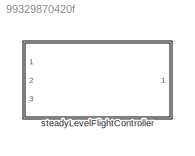
MODEL slx_99329870420f
KIND library
CONFIG AbsTol = auto
CONFIG EnableMultiTasking = off
CONFIG FixedStep = auto
CONFIG MaxStep = auto
CONFIG MinStep = auto
CONFIG RelTol = 1e-3
CONFIG SampleTimeConstraint = Unconstrained
CONFIG SolverName = VariableStepAuto
CONFIG StartTime = 0.0
CONFIG StopTime = 10.0
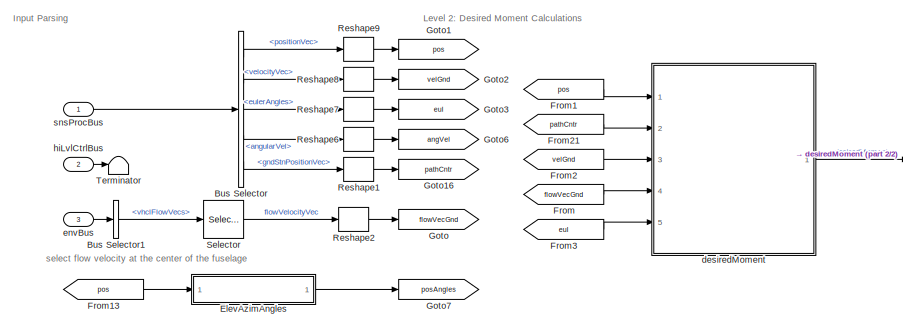
[diagram: steadyLevelFlightController - part 1/2, left side, full height]
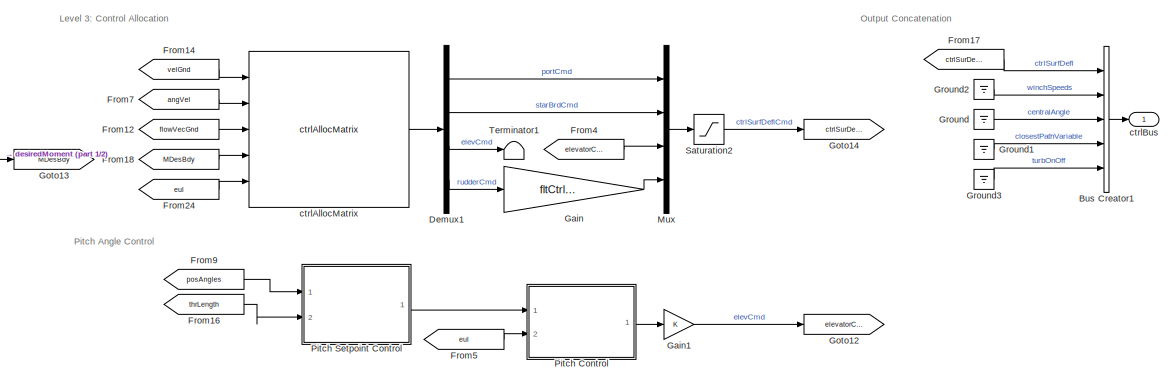
[diagram: steadyLevelFlightController - part 2/2, right side, full height]
BLOCK [SubSystem] steadyLevelFlightController
  InitFcn = initializeBussesFromBlock(gcb)
  LoadFcn = initializeBussesFromBlock(gcb)
  MinAlgLoopOccurrences = on
  Ports = [3, 1]
  RequestExecContextInheritance = off
  StartFcn = initializeBussesFromBlock(gcb)
  VariantControl = strcmpi(FLIGHTCONTROLLER,'steadyLevelFlightController')
BLOCK [BusCreator] steadyLevelFlightController/Bus Creator1
  DisplayOption = bar
  InheritFromInputs = off
  Inputs = 5
  OutDataTypeStr = Bus: fltCtrlBus
  Ports = [5, 1]
BLOCK [BusSelector] steadyLevelFlightController/Bus Selector
  OutputSignals = positionVec,velocityVec,eulerAngles,angularVel,gndStnPositionVec
  Ports = [1, 5]
BLOCK [BusSelector] steadyLevelFlightController/Bus Selector1
  OutputSignals = vhclFlowVecs
  Ports = [1, 1]
BLOCK [Demux] steadyLevelFlightController/Demux1
  Ports = [1, 4]
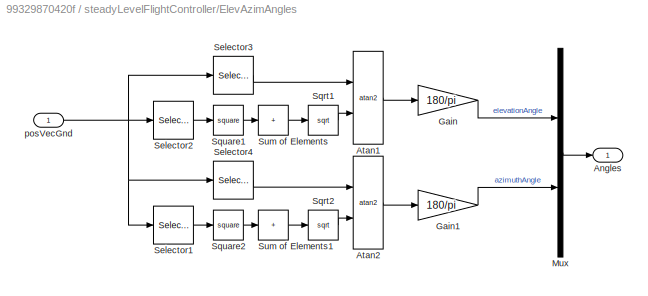
BLOCK [SubSystem] steadyLevelFlightController/ElevAzimAngles
  Ports = [1, 1]
  RequestExecContextInheritance = off
BLOCK [Outport] steadyLevelFlightController/ElevAzimAngles/Angles
BLOCK [Trigonometry] steadyLevelFlightController/ElevAzimAngles/Atan1
  Operator = atan2
  Ports = [2, 1]
BLOCK [Trigonometry] steadyLevelFlightController/ElevAzimAngles/Atan2
  Operator = atan2
  Ports = [2, 1]
BLOCK [Gain] steadyLevelFlightController/ElevAzimAngles/Gain
  Gain = 180/pi
BLOCK [Gain] steadyLevelFlightController/ElevAzimAngles/Gain1
  Gain = 180/pi
BLOCK [Mux] steadyLevelFlightController/ElevAzimAngles/Mux
  DisplayOption = bar
  Inputs = 2
  Ports = [2, 1]
BLOCK [Selector] steadyLevelFlightController/ElevAzimAngles/Selector1
  IndexOptions = Index vector (dialog)
  Indices = 1
  InputPortWidth = 3
  OutputSizes = 1
  Ports = [1, 1]
BLOCK [Selector] steadyLevelFlightController/ElevAzimAngles/Selector2
  IndexOptions = Index vector (dialog)
  Indices = [1 2]
  InputPortWidth = 3
  OutputSizes = 1
  Ports = [1, 1]
BLOCK [Selector] steadyLevelFlightController/ElevAzimAngles/Selector3
  IndexOptions = Index vector (dialog)
  Indices = 3
  InputPortWidth = 3
  OutputSizes = 1
  Ports = [1, 1]
BLOCK [Selector] steadyLevelFlightController/ElevAzimAngles/Selector4
  IndexOptions = Index vector (dialog)
  Indices = 2
  InputPortWidth = 3
  OutputSizes = 1
  Ports = [1, 1]
BLOCK [Sqrt] steadyLevelFlightController/ElevAzimAngles/Sqrt1
BLOCK [Sqrt] steadyLevelFlightController/ElevAzimAngles/Sqrt2
BLOCK [Math] steadyLevelFlightController/ElevAzimAngles/Square1
  Operator = square
  Ports = [1, 1]
  SignedPower = on
BLOCK [Math] steadyLevelFlightController/ElevAzimAngles/Square2
  Operator = square
  Ports = [1, 1]
  SignedPower = on
BLOCK [Sum] steadyLevelFlightController/ElevAzimAngles/Sum of Elements
  IconShape = rectangular
  Inputs = +
  Ports = [1, 1]
BLOCK [Sum] steadyLevelFlightController/ElevAzimAngles/Sum of Elements1
  IconShape = rectangular
  Inputs = +
  Ports = [1, 1]
BLOCK [Inport] steadyLevelFlightController/ElevAzimAngles/posVecGnd
BLOCK [From] steadyLevelFlightController/From
  GotoTag = flowVecGnd
BLOCK [From] steadyLevelFlightController/From1
  GotoTag = pos
BLOCK [From] steadyLevelFlightController/From12
  GotoTag = flowVecGnd
BLOCK [From] steadyLevelFlightController/From13
  GotoTag = pos
BLOCK [From] steadyLevelFlightController/From14
  GotoTag = velGnd
BLOCK [From] steadyLevelFlightController/From16
  GotoTag = thrLength
BLOCK [From] steadyLevelFlightController/From17
  GotoTag = ctrlSurDefl
BLOCK [From] steadyLevelFlightController/From18
  GotoTag = MDesBdy
BLOCK [From] steadyLevelFlightController/From2
  GotoTag = velGnd
BLOCK [From] steadyLevelFlightController/From21
  GotoTag = pathCntr
BLOCK [From] steadyLevelFlightController/From24
  GotoTag = eul
BLOCK [From] steadyLevelFlightController/From3
  GotoTag = eul
BLOCK [From] steadyLevelFlightController/From4
  GotoTag = elevatorCmd
BLOCK [From] steadyLevelFlightController/From5
  GotoTag = eul
BLOCK [From] steadyLevelFlightController/From7
  GotoTag = angVel
BLOCK [From] steadyLevelFlightController/From9
  GotoTag = posAngles
BLOCK [Gain] steadyLevelFlightController/Gain
  Gain = fltCtrl.rudderGain.Value
BLOCK [Gain] steadyLevelFlightController/Gain1
BLOCK [Goto] steadyLevelFlightController/Goto
  GotoTag = flowVecGnd
BLOCK [Goto] steadyLevelFlightController/Goto1
  GotoTag = pos
BLOCK [Goto] steadyLevelFlightController/Goto12
  GotoTag = elevatorCmd
BLOCK [Goto] steadyLevelFlightController/Goto13
  GotoTag = MDesBdy
BLOCK [Goto] steadyLevelFlightController/Goto14
  GotoTag = ctrlSurDefl
BLOCK [Goto] steadyLevelFlightController/Goto16
  GotoTag = pathCntr
BLOCK [Goto] steadyLevelFlightController/Goto2
  GotoTag = velGnd
BLOCK [Goto] steadyLevelFlightController/Goto3
  GotoTag = eul
BLOCK [Goto] steadyLevelFlightController/Goto6
  GotoTag = angVel
BLOCK [Goto] steadyLevelFlightController/Goto7
  GotoTag = posAngles
BLOCK [Ground] steadyLevelFlightController/Ground
BLOCK [Ground] steadyLevelFlightController/Ground1
BLOCK [Ground] steadyLevelFlightController/Ground2
BLOCK [Ground] steadyLevelFlightController/Ground3
BLOCK [Mux] steadyLevelFlightController/Mux
  DisplayOption = bar
  Ports = [4, 1]
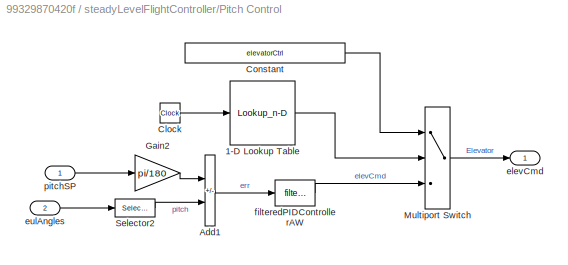
BLOCK [SubSystem] steadyLevelFlightController/Pitch Control
  Ports = [2, 1]
  RequestExecContextInheritance = off
BLOCK [Lookup_n-D] steadyLevelFlightController/Pitch Control/1-D Lookup Table
  BreakpointsForDimension1 = tRef
  InputPortMap = u0
  InternalRulePriority = Speed
  NumberOfTableDimensions = 1
  Ports = [1, 1]
  RndMeth = Simplest
  Table = elevCommand
BLOCK [Sum] steadyLevelFlightController/Pitch Control/Add1
  IconShape = rectangular
  Inputs = -+
  Ports = [2, 1]
BLOCK [Clock] steadyLevelFlightController/Pitch Control/Clock
BLOCK [Constant] steadyLevelFlightController/Pitch Control/Constant
  Value = elevatorCtrl
BLOCK [Gain] steadyLevelFlightController/Pitch Control/Gain2
  Gain = pi/180
BLOCK [MultiPortSwitch] steadyLevelFlightController/Pitch Control/Multiport Switch
  DataPortIndices = {0,1}
  DataPortOrder = Specify indices
  InputSameDT = off
  Inputs = 2
  Ports = [3, 1]
  SaturateOnIntegerOverflow = off
BLOCK [Selector] steadyLevelFlightController/Pitch Control/Selector2
  IndexOptions = Index vector (dialog)
  Indices = 2
  InputPortWidth = 3
  OutputSizes = 1
  Ports = [1, 1]
BLOCK [Outport] steadyLevelFlightController/Pitch Control/elevCmd
BLOCK [Inport] steadyLevelFlightController/Pitch Control/eulAngles
  Port = 2
BLOCK [Reference] steadyLevelFlightController/Pitch Control/filteredPIDControllerAW  REF=filteredPIDControllerAW_ul/filteredPIDControllerAW
  Ports = [1, 1]
  SourceBlock = filteredPIDControllerAW_ul/filteredPIDControllerAW
BLOCK [Inport] steadyLevelFlightController/Pitch Control/pitchSP
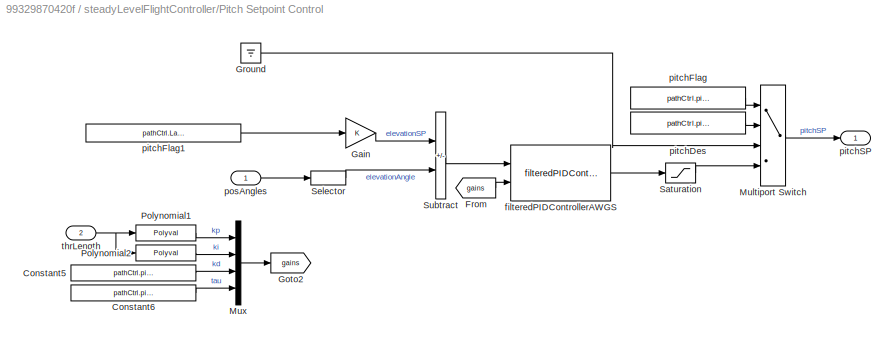
BLOCK [SubSystem] steadyLevelFlightController/Pitch Setpoint Control
  Ports = [2, 1]
  RequestExecContextInheritance = off
BLOCK [Constant] steadyLevelFlightController/Pitch Setpoint Control/Constant5
  Value = pathCtrl.pitchSP.kd.Value
BLOCK [Constant] steadyLevelFlightController/Pitch Setpoint Control/Constant6
  Value = pathCtrl.pitchSP.tau.Value
BLOCK [From] steadyLevelFlightController/Pitch Setpoint Control/From
  GotoTag = gains
BLOCK [Gain] steadyLevelFlightController/Pitch Setpoint Control/Gain
BLOCK [Goto] steadyLevelFlightController/Pitch Setpoint Control/Goto2
  GotoTag = gains
BLOCK [Ground] steadyLevelFlightController/Pitch Setpoint Control/Ground
BLOCK [MultiPortSwitch] steadyLevelFlightController/Pitch Setpoint Control/Multiport Switch
  DataPortIndices = {0,1,2}
  DataPortOrder = Specify indices
  InputSameDT = off
  Inputs = 2
  Ports = [4, 1]
  SaturateOnIntegerOverflow = off
BLOCK [Mux] steadyLevelFlightController/Pitch Setpoint Control/Mux
  DisplayOption = bar
  Ports = [4, 1]
BLOCK [Polyval] steadyLevelFlightController/Pitch Setpoint Control/Polynomial1
  Coefs = [pathCtrl.pitchSPkpSlope.Value pathCtrl.pitchSPkpInt.Value]
BLOCK [Polyval] steadyLevelFlightController/Pitch Setpoint Control/Polynomial2
  Coefs = [pathCtrl.pitchSPkiSlope.Value pathCtrl.pitchSPkiInt.Value]
BLOCK [Saturate] steadyLevelFlightController/Pitch Setpoint Control/Saturation
  LowerLimit = pathCtrl.pitchAngleMax.lowerLimit.Value
  UpperLimit = pathCtrl.pitchAngleMax.upperLimit.Value
BLOCK [Selector] steadyLevelFlightController/Pitch Setpoint Control/Selector
  IndexOptions = Index vector (dialog)
  Indices = 1
  InputPortWidth = 2
  OutputSizes = 1
  Ports = [1, 1]
BLOCK [Sum] steadyLevelFlightController/Pitch Setpoint Control/Subtract
  IconShape = rectangular
  Inputs = +-
  Ports = [2, 1]
BLOCK [Reference] steadyLevelFlightController/Pitch Setpoint Control/filteredPIDControllerAWGS  REF=filteredPIDControllerAWGS_ul/filteredPIDControllerAWGS
  Ports = [2, 1]
  SourceBlock = filteredPIDControllerAWGS_ul/filteredPIDControllerAWGS
BLOCK [Constant] steadyLevelFlightController/Pitch Setpoint Control/pitchDes
  Value = pathCtrl.pitchConst.Value
BLOCK [Constant] steadyLevelFlightController/Pitch Setpoint Control/pitchFlag
  Value = pathCtrl.pitchCtrl.Value
BLOCK [Constant] steadyLevelFlightController/Pitch Setpoint Control/pitchFlag1
  Value = pathCtrl.LaRelevationSP.Value
BLOCK [Outport] steadyLevelFlightController/Pitch Setpoint Control/pitchSP
BLOCK [Inport] steadyLevelFlightController/Pitch Setpoint Control/posAngles
BLOCK [Inport] steadyLevelFlightController/Pitch Setpoint Control/thrLength
  Port = 2
BLOCK [Reshape] steadyLevelFlightController/Reshape1
  OutputDimensionality = Column vector (2-D)
  Ports = [1, 1]
BLOCK [Reshape] steadyLevelFlightController/Reshape2
  OutputDimensionality = Column vector (2-D)
  Ports = [1, 1]
BLOCK [Reshape] steadyLevelFlightController/Reshape6
  OutputDimensionality = Column vector (2-D)
  Ports = [1, 1]
BLOCK [Reshape] steadyLevelFlightController/Reshape7
  OutputDimensionality = Column vector (2-D)
  Ports = [1, 1]
BLOCK [Reshape] steadyLevelFlightController/Reshape8
  OutputDimensionality = Column vector (2-D)
  Ports = [1, 1]
BLOCK [Reshape] steadyLevelFlightController/Reshape9
  OutputDimensionality = Column vector (2-D)
  Ports = [1, 1]
BLOCK [Saturate] steadyLevelFlightController/Saturation2
  LowerLimit = pathCtrl.controlSigMax.lowerLimit.Value
  UpperLimit = pathCtrl.controlSigMax.upperLimit.Value
BLOCK [Selector] steadyLevelFlightController/Selector
  IndexOptions = Select all,Index vector (dialog)
  Indices = [1 3],5
  InputPortWidth = 3
  NumberOfDimensions = 2
  OutputSizes = 1,1
  Ports = [1, 1]
BLOCK [Terminator] steadyLevelFlightController/Terminator
BLOCK [Terminator] steadyLevelFlightController/Terminator1
BLOCK [Reference] steadyLevelFlightController/ctrlAllocMatrix  REF=ctrlAllocMatrix_cl/ctrlAllocMatrix
  Ports = [5, 1]
  SourceBlock = ctrlAllocMatrix_cl/ctrlAllocMatrix
BLOCK [Outport] steadyLevelFlightController/ctrlBus
  OutDataTypeStr = Bus: fltCtrlBus
  VectorParamsAs1DForOutWhenUnconnected = off
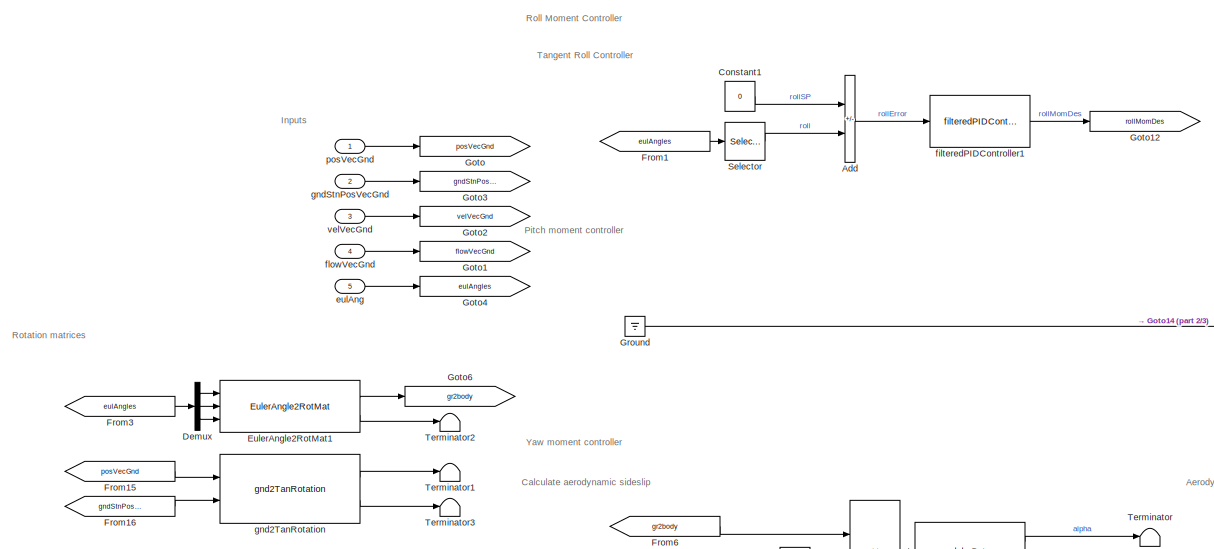
[diagram: steadyLevelFlightController/desiredMoment - part 1/3, left side, full height]
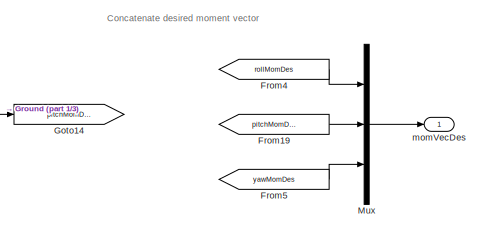
[diagram: steadyLevelFlightController/desiredMoment - part 2/3, middle right region]
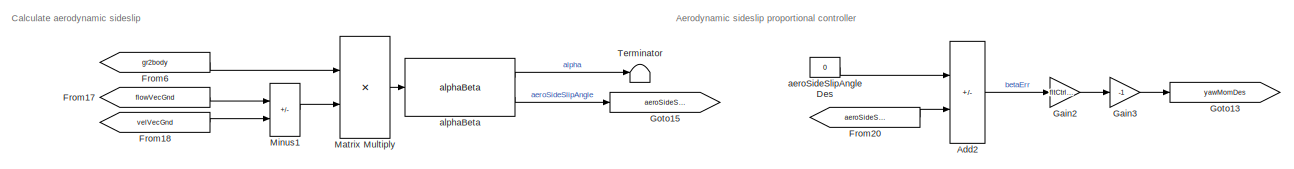
[diagram: steadyLevelFlightController/desiredMoment - part 3/3, bottom center region]
BLOCK [SubSystem] steadyLevelFlightController/desiredMoment
  Ports = [5, 1]
  RequestExecContextInheritance = off
BLOCK [Sum] steadyLevelFlightController/desiredMoment/Add
  IconShape = rectangular
  Inputs = +-
  Ports = [2, 1]
BLOCK [Sum] steadyLevelFlightController/desiredMoment/Add2
  IconShape = rectangular
  Inputs = +-
  Ports = [2, 1]
BLOCK [Constant] steadyLevelFlightController/desiredMoment/Constant1
  Value = 0
BLOCK [Demux] steadyLevelFlightController/desiredMoment/Demux
  Outputs = 3
  Ports = [1, 3]
BLOCK [Reference] steadyLevelFlightController/desiredMoment/EulerAngle2RotMat1  REF=eulAng2RotMat_ul/EulerAngle2RotMat
  Ports = [3, 2]
  SourceBlock = eulAng2RotMat_ul/EulerAngle2RotMat
  SourceType = SubSystem
BLOCK [From] steadyLevelFlightController/desiredMoment/From1
  GotoTag = eulAngles
BLOCK [From] steadyLevelFlightController/desiredMoment/From15
  GotoTag = posVecGnd
BLOCK [From] steadyLevelFlightController/desiredMoment/From16
  GotoTag = gndStnPosVecGnd
BLOCK [From] steadyLevelFlightController/desiredMoment/From17
  GotoTag = flowVecGnd
BLOCK [From] steadyLevelFlightController/desiredMoment/From18
  GotoTag = velVecGnd
BLOCK [From] steadyLevelFlightController/desiredMoment/From19
  GotoTag = pitchMomDes
BLOCK [From] steadyLevelFlightController/desiredMoment/From20
  GotoTag = aeroSideSlipAngle
BLOCK [From] steadyLevelFlightController/desiredMoment/From3
  GotoTag = eulAngles
BLOCK [From] steadyLevelFlightController/desiredMoment/From4
  GotoTag = rollMomDes
BLOCK [From] steadyLevelFlightController/desiredMoment/From5
  GotoTag = yawMomDes
BLOCK [From] steadyLevelFlightController/desiredMoment/From6
  GotoTag = gr2body
BLOCK [Gain] steadyLevelFlightController/desiredMoment/Gain2
  Gain = fltCtrl.yawMoment.kp.Value
BLOCK [Gain] steadyLevelFlightController/desiredMoment/Gain3
  Gain = -1
BLOCK [Goto] steadyLevelFlightController/desiredMoment/Goto
  GotoTag = posVecGnd
BLOCK [Goto] steadyLevelFlightController/desiredMoment/Goto1
  GotoTag = flowVecGnd
BLOCK [Goto] steadyLevelFlightController/desiredMoment/Goto12
  GotoTag = rollMomDes
BLOCK [Goto] steadyLevelFlightController/desiredMoment/Goto13
  GotoTag = yawMomDes
BLOCK [Goto] steadyLevelFlightController/desiredMoment/Goto14
  GotoTag = pitchMomDes
BLOCK [Goto] steadyLevelFlightController/desiredMoment/Goto15
  GotoTag = aeroSideSlipAngle
BLOCK [Goto] steadyLevelFlightController/desiredMoment/Goto2
  GotoTag = velVecGnd
BLOCK [Goto] steadyLevelFlightController/desiredMoment/Goto3
  GotoTag = gndStnPosVecGnd
BLOCK [Goto] steadyLevelFlightController/desiredMoment/Goto4
  GotoTag = eulAngles
BLOCK [Goto] steadyLevelFlightController/desiredMoment/Goto6
  GotoTag = gr2body
BLOCK [Ground] steadyLevelFlightController/desiredMoment/Ground
BLOCK [Product] steadyLevelFlightController/desiredMoment/Matrix Multiply
  Multiplication = Matrix(*)
  Ports = [2, 1]
BLOCK [Sum] steadyLevelFlightController/desiredMoment/Minus1
  IconShape = rectangular
  Inputs = +-
  Ports = [2, 1]
BLOCK [Mux] steadyLevelFlightController/desiredMoment/Mux
  DisplayOption = bar
  Inputs = 3
  Ports = [3, 1]
BLOCK [Selector] steadyLevelFlightController/desiredMoment/Selector
  IndexOptions = Index vector (dialog)
  Indices = 1
  InputPortWidth = 3
  OutputSizes = 1
  Ports = [1, 1]
BLOCK [Terminator] steadyLevelFlightController/desiredMoment/Terminator
BLOCK [Terminator] steadyLevelFlightController/desiredMoment/Terminator1
BLOCK [Terminator] steadyLevelFlightController/desiredMoment/Terminator2
BLOCK [Terminator] steadyLevelFlightController/desiredMoment/Terminator3
BLOCK [Constant] steadyLevelFlightController/desiredMoment/aeroSideSlipAngleDes
  Value = 0
BLOCK [Reference] steadyLevelFlightController/desiredMoment/alphaBeta  REF=alphaBeta_ul/alphaBeta
  Ports = [1, 2]
  SourceBlock = alphaBeta_ul/alphaBeta
  SourceType = SubSystem
BLOCK [Inport] steadyLevelFlightController/desiredMoment/eulAng
  Port = 5
BLOCK [Reference] steadyLevelFlightController/desiredMoment/filteredPIDController1  REF=filteredPIDController_ul/filteredPIDController
  Ports = [1, 1]
  SourceBlock = filteredPIDController_ul/filteredPIDController
BLOCK [Inport] steadyLevelFlightController/desiredMoment/flowVecGnd
  Port = 4
BLOCK [Reference] steadyLevelFlightController/desiredMoment/gnd2TanRotation  REF=gnd2TanRotation_ul/gnd2TanRotation
  Ports = [2, 2]
  SourceBlock = gnd2TanRotation_ul/gnd2TanRotation
  SourceType = SubSystem
BLOCK [Inport] steadyLevelFlightController/desiredMoment/gndStnPosVecGnd
  Port = 2
BLOCK [Outport] steadyLevelFlightController/desiredMoment/momVecDes
  VectorParamsAs1DForOutWhenUnconnected = off
BLOCK [Inport] steadyLevelFlightController/desiredMoment/posVecGnd
BLOCK [Inport] steadyLevelFlightController/desiredMoment/velVecGnd
  Port = 3
BLOCK [Inport] steadyLevelFlightController/envBus
  OutDataTypeStr = Bus: envBus
  Port = 3
BLOCK [Inport] steadyLevelFlightController/hiLvlCtrlBus
  OutDataTypeStr = Bus: hiLvlCtrlBus
  Port = 2
BLOCK [Inport] steadyLevelFlightController/snsProcBus
  OutDataTypeStr = Bus: sensorsProcessingBus
ANNOTATION steadyLevelFlightController: Input Parsing
ANNOTATION steadyLevelFlightController: Level 2: Desired Moment Calculations
ANNOTATION steadyLevelFlightController: Level 3: Control Allocation
ANNOTATION steadyLevelFlightController: Output Concatenation
ANNOTATION steadyLevelFlightController: Pitch Angle Control
ANNOTATION steadyLevelFlightController: select flow velocity at the center of the fuselage
ANNOTATION steadyLevelFlightController/desiredMoment: Aerodynamic sideslip proportional controller
ANNOTATION steadyLevelFlightController/desiredMoment: Calculate aerodynamic sideslip
ANNOTATION steadyLevelFlightController/desiredMoment: Concatenate desired moment vector
ANNOTATION steadyLevelFlightController/desiredMoment: Inputs
ANNOTATION steadyLevelFlightController/desiredMoment: Pitch moment controller
ANNOTATION steadyLevelFlightController/desiredMoment: Roll Moment Controller
ANNOTATION steadyLevelFlightController/desiredMoment: Rotation matrices
ANNOTATION steadyLevelFlightController/desiredMoment: Tangent Roll Controller
ANNOTATION steadyLevelFlightController/desiredMoment: Yaw moment controller
LINE steadyLevelFlightController/Bus Creator1:1 -> steadyLevelFlightController/ctrlBus:1
LINE steadyLevelFlightController/Bus Selector1:1 -> steadyLevelFlightController/Selector:1
LINE steadyLevelFlightController/Bus Selector:1 -> steadyLevelFlightController/Reshape9:1
LINE steadyLevelFlightController/Bus Selector:2 -> steadyLevelFlightController/Reshape8:1
LINE steadyLevelFlightController/Bus Selector:3 -> steadyLevelFlightController/Reshape7:1
LINE steadyLevelFlightController/Bus Selector:4 -> steadyLevelFlightController/Reshape6:1
LINE steadyLevelFlightController/Bus Selector:5 -> steadyLevelFlightController/Reshape1:1
LINE steadyLevelFlightController/Demux1:1 -> steadyLevelFlightController/Mux:1
LINE steadyLevelFlightController/Demux1:2 -> steadyLevelFlightController/Mux:2
LINE steadyLevelFlightController/Demux1:3 -> steadyLevelFlightController/Terminator1:1
LINE steadyLevelFlightController/Demux1:4 -> steadyLevelFlightController/Gain:1
LINE steadyLevelFlightController/ElevAzimAngles/Atan1:1 -> steadyLevelFlightController/ElevAzimAngles/Gain:1
LINE steadyLevelFlightController/ElevAzimAngles/Atan2:1 -> steadyLevelFlightController/ElevAzimAngles/Gain1:1
LINE steadyLevelFlightController/ElevAzimAngles/Gain1:1 -> steadyLevelFlightController/ElevAzimAngles/Mux:2
LINE steadyLevelFlightController/ElevAzimAngles/Gain:1 -> steadyLevelFlightController/ElevAzimAngles/Mux:1
LINE steadyLevelFlightController/ElevAzimAngles/Mux:1 -> steadyLevelFlightController/ElevAzimAngles/Angles:1
LINE steadyLevelFlightController/ElevAzimAngles/Selector1:1 -> steadyLevelFlightController/ElevAzimAngles/Square2:1
LINE steadyLevelFlightController/ElevAzimAngles/Selector2:1 -> steadyLevelFlightController/ElevAzimAngles/Square1:1
LINE steadyLevelFlightController/ElevAzimAngles/Selector3:1 -> steadyLevelFlightController/ElevAzimAngles/Atan1:1
LINE steadyLevelFlightController/ElevAzimAngles/Selector4:1 -> steadyLevelFlightController/ElevAzimAngles/Atan2:1
LINE steadyLevelFlightController/ElevAzimAngles/Sqrt1:1 -> steadyLevelFlightController/ElevAzimAngles/Atan1:2
LINE steadyLevelFlightController/ElevAzimAngles/Sqrt2:1 -> steadyLevelFlightController/ElevAzimAngles/Atan2:2
LINE steadyLevelFlightController/ElevAzimAngles/Square1:1 -> steadyLevelFlightController/ElevAzimAngles/Sum of Elements:1
LINE steadyLevelFlightController/ElevAzimAngles/Square2:1 -> steadyLevelFlightController/ElevAzimAngles/Sum of Elements1:1
LINE steadyLevelFlightController/ElevAzimAngles/Sum of Elements1:1 -> steadyLevelFlightController/ElevAzimAngles/Sqrt2:1
LINE steadyLevelFlightController/ElevAzimAngles/Sum of Elements:1 -> steadyLevelFlightController/ElevAzimAngles/Sqrt1:1
NET steadyLevelFlightController/ElevAzimAngles/posVecGnd:1 -> steadyLevelFlightController/ElevAzimAngles/Selector1:1, steadyLevelFlightController/ElevAzimAngles/Selector2:1, steadyLevelFlightController/ElevAzimAngles/Selector3:1, steadyLevelFlightController/ElevAzimAngles/Selector4:1
LINE steadyLevelFlightController/ElevAzimAngles:1 -> steadyLevelFlightController/Goto7:1
LINE steadyLevelFlightController/From12:1 -> steadyLevelFlightController/ctrlAllocMatrix:3
LINE steadyLevelFlightController/From13:1 -> steadyLevelFlightController/ElevAzimAngles:1
LINE steadyLevelFlightController/From14:1 -> steadyLevelFlightController/ctrlAllocMatrix:1
LINE steadyLevelFlightController/From16:1 -> steadyLevelFlightController/Pitch Setpoint Control:2
LINE steadyLevelFlightController/From17:1 -> steadyLevelFlightController/Bus Creator1:1
LINE steadyLevelFlightController/From18:1 -> steadyLevelFlightController/ctrlAllocMatrix:4
LINE steadyLevelFlightController/From1:1 -> steadyLevelFlightController/desiredMoment:1
LINE steadyLevelFlightController/From21:1 -> steadyLevelFlightController/desiredMoment:2
LINE steadyLevelFlightController/From24:1 -> steadyLevelFlightController/ctrlAllocMatrix:5
LINE steadyLevelFlightController/From2:1 -> steadyLevelFlightController/desiredMoment:3
LINE steadyLevelFlightController/From3:1 -> steadyLevelFlightController/desiredMoment:5
LINE steadyLevelFlightController/From4:1 -> steadyLevelFlightController/Mux:3
LINE steadyLevelFlightController/From5:1 -> steadyLevelFlightController/Pitch Control:2
LINE steadyLevelFlightController/From7:1 -> steadyLevelFlightController/ctrlAllocMatrix:2
LINE steadyLevelFlightController/From9:1 -> steadyLevelFlightController/Pitch Setpoint Control:1
LINE steadyLevelFlightController/From:1 -> steadyLevelFlightController/desiredMoment:4
LINE steadyLevelFlightController/Gain1:1 -> steadyLevelFlightController/Goto12:1
LINE steadyLevelFlightController/Gain:1 -> steadyLevelFlightController/Mux:4
LINE steadyLevelFlightController/Ground1:1 -> steadyLevelFlightController/Bus Creator1:4
LINE steadyLevelFlightController/Ground2:1 -> steadyLevelFlightController/Bus Creator1:2
LINE steadyLevelFlightController/Ground3:1 -> steadyLevelFlightController/Bus Creator1:5
LINE steadyLevelFlightController/Ground:1 -> steadyLevelFlightController/Bus Creator1:3
LINE steadyLevelFlightController/Mux:1 -> steadyLevelFlightController/Saturation2:1
LINE steadyLevelFlightController/Pitch Control/1-D Lookup Table:1 -> steadyLevelFlightController/Pitch Control/Multiport Switch:2
LINE steadyLevelFlightController/Pitch Control/Add1:1 -> steadyLevelFlightController/Pitch Control/filteredPIDControllerAW:1
LINE steadyLevelFlightController/Pitch Control/Clock:1 -> steadyLevelFlightController/Pitch Control/1-D Lookup Table:1
LINE steadyLevelFlightController/Pitch Control/Constant:1 -> steadyLevelFlightController/Pitch Control/Multiport Switch:1
LINE steadyLevelFlightController/Pitch Control/Gain2:1 -> steadyLevelFlightController/Pitch Control/Add1:1
LINE steadyLevelFlightController/Pitch Control/Multiport Switch:1 -> steadyLevelFlightController/Pitch Control/elevCmd:1
LINE steadyLevelFlightController/Pitch Control/Selector2:1 -> steadyLevelFlightController/Pitch Control/Add1:2
LINE steadyLevelFlightController/Pitch Control/eulAngles:1 -> steadyLevelFlightController/Pitch Control/Selector2:1
LINE steadyLevelFlightController/Pitch Control/filteredPIDControllerAW:1 -> steadyLevelFlightController/Pitch Control/Multiport Switch:3
LINE steadyLevelFlightController/Pitch Control/pitchSP:1 -> steadyLevelFlightController/Pitch Control/Gain2:1
LINE steadyLevelFlightController/Pitch Control:1 -> steadyLevelFlightController/Gain1:1
LINE steadyLevelFlightController/Pitch Setpoint Control/Constant5:1 -> steadyLevelFlightController/Pitch Setpoint Control/Mux:3
LINE steadyLevelFlightController/Pitch Setpoint Control/Constant6:1 -> steadyLevelFlightController/Pitch Setpoint Control/Mux:4
LINE steadyLevelFlightController/Pitch Setpoint Control/From:1 -> steadyLevelFlightController/Pitch Setpoint Control/filteredPIDControllerAWGS:2
LINE steadyLevelFlightController/Pitch Setpoint Control/Gain:1 -> steadyLevelFlightController/Pitch Setpoint Control/Subtract:1
LINE steadyLevelFlightController/Pitch Setpoint Control/Ground:1 -> steadyLevelFlightController/Pitch Setpoint Control/Multiport Switch:3
LINE steadyLevelFlightController/Pitch Setpoint Control/Multiport Switch:1 -> steadyLevelFlightController/Pitch Setpoint Control/pitchSP:1
LINE steadyLevelFlightController/Pitch Setpoint Control/Mux:1 -> steadyLevelFlightController/Pitch Setpoint Control/Goto2:1
LINE steadyLevelFlightController/Pitch Setpoint Control/Polynomial1:1 -> steadyLevelFlightController/Pitch Setpoint Control/Mux:1
LINE steadyLevelFlightController/Pitch Setpoint Control/Polynomial2:1 -> steadyLevelFlightController/Pitch Setpoint Control/Mux:2
LINE steadyLevelFlightController/Pitch Setpoint Control/Saturation:1 -> steadyLevelFlightController/Pitch Setpoint Control/Multiport Switch:4
LINE steadyLevelFlightController/Pitch Setpoint Control/Selector:1 -> steadyLevelFlightController/Pitch Setpoint Control/Subtract:2
LINE steadyLevelFlightController/Pitch Setpoint Control/Subtract:1 -> steadyLevelFlightController/Pitch Setpoint Control/filteredPIDControllerAWGS:1
LINE steadyLevelFlightController/Pitch Setpoint Control/filteredPIDControllerAWGS:1 -> steadyLevelFlightController/Pitch Setpoint Control/Saturation:1
LINE steadyLevelFlightController/Pitch Setpoint Control/pitchDes:1 -> steadyLevelFlightController/Pitch Setpoint Control/Multiport Switch:2
LINE steadyLevelFlightController/Pitch Setpoint Control/pitchFlag1:1 -> steadyLevelFlightController/Pitch Setpoint Control/Gain:1
LINE steadyLevelFlightController/Pitch Setpoint Control/pitchFlag:1 -> steadyLevelFlightController/Pitch Setpoint Control/Multiport Switch:1
LINE steadyLevelFlightController/Pitch Setpoint Control/posAngles:1 -> steadyLevelFlightController/Pitch Setpoint Control/Selector:1
NET steadyLevelFlightController/Pitch Setpoint Control/thrLength:1 -> steadyLevelFlightController/Pitch Setpoint Control/Polynomial1:1, steadyLevelFlightController/Pitch Setpoint Control/Polynomial2:1
LINE steadyLevelFlightController/Pitch Setpoint Control:1 -> steadyLevelFlightController/Pitch Control:1
LINE steadyLevelFlightController/Reshape1:1 -> steadyLevelFlightController/Goto16:1
LINE steadyLevelFlightController/Reshape2:1 -> steadyLevelFlightController/Goto:1
LINE steadyLevelFlightController/Reshape6:1 -> steadyLevelFlightController/Goto6:1
LINE steadyLevelFlightController/Reshape7:1 -> steadyLevelFlightController/Goto3:1
LINE steadyLevelFlightController/Reshape8:1 -> steadyLevelFlightController/Goto2:1
LINE steadyLevelFlightController/Reshape9:1 -> steadyLevelFlightController/Goto1:1
LINE steadyLevelFlightController/Saturation2:1 -> steadyLevelFlightController/Goto14:1
LINE steadyLevelFlightController/Selector:1 -> steadyLevelFlightController/Reshape2:1
LINE steadyLevelFlightController/ctrlAllocMatrix:1 -> steadyLevelFlightController/Demux1:1
LINE steadyLevelFlightController/desiredMoment/Add2:1 -> steadyLevelFlightController/desiredMoment/Gain2:1
LINE steadyLevelFlightController/desiredMoment/Add:1 -> steadyLevelFlightController/desiredMoment/filteredPIDController1:1
LINE steadyLevelFlightController/desiredMoment/Constant1:1 -> steadyLevelFlightController/desiredMoment/Add:1
LINE steadyLevelFlightController/desiredMoment/Demux:1 -> steadyLevelFlightController/desiredMoment/EulerAngle2RotMat1:1
LINE steadyLevelFlightController/desiredMoment/Demux:2 -> steadyLevelFlightController/desiredMoment/EulerAngle2RotMat1:2
LINE steadyLevelFlightController/desiredMoment/Demux:3 -> steadyLevelFlightController/desiredMoment/EulerAngle2RotMat1:3
LINE steadyLevelFlightController/desiredMoment/EulerAngle2RotMat1:1 -> steadyLevelFlightController/desiredMoment/Goto6:1
LINE steadyLevelFlightController/desiredMoment/EulerAngle2RotMat1:2 -> steadyLevelFlightController/desiredMoment/Terminator2:1
LINE steadyLevelFlightController/desiredMoment/From15:1 -> steadyLevelFlightController/desiredMoment/gnd2TanRotation:1
LINE steadyLevelFlightController/desiredMoment/From16:1 -> steadyLevelFlightController/desiredMoment/gnd2TanRotation:2
LINE steadyLevelFlightController/desiredMoment/From17:1 -> steadyLevelFlightController/desiredMoment/Minus1:1
LINE steadyLevelFlightController/desiredMoment/From18:1 -> steadyLevelFlightController/desiredMoment/Minus1:2
LINE steadyLevelFlightController/desiredMoment/From19:1 -> steadyLevelFlightController/desiredMoment/Mux:2
LINE steadyLevelFlightController/desiredMoment/From1:1 -> steadyLevelFlightController/desiredMoment/Selector:1
LINE steadyLevelFlightController/desiredMoment/From20:1 -> steadyLevelFlightController/desiredMoment/Add2:2
LINE steadyLevelFlightController/desiredMoment/From3:1 -> steadyLevelFlightController/desiredMoment/Demux:1
LINE steadyLevelFlightController/desiredMoment/From4:1 -> steadyLevelFlightController/desiredMoment/Mux:1
LINE steadyLevelFlightController/desiredMoment/From5:1 -> steadyLevelFlightController/desiredMoment/Mux:3
LINE steadyLevelFlightController/desiredMoment/From6:1 -> steadyLevelFlightController/desiredMoment/Matrix Multiply:1
LINE steadyLevelFlightController/desiredMoment/Gain2:1 -> steadyLevelFlightController/desiredMoment/Gain3:1
LINE steadyLevelFlightController/desiredMoment/Gain3:1 -> steadyLevelFlightController/desiredMoment/Goto13:1
LINE steadyLevelFlightController/desiredMoment/Ground:1 -> steadyLevelFlightController/desiredMoment/Goto14:1
LINE steadyLevelFlightController/desiredMoment/Matrix Multiply:1 -> steadyLevelFlightController/desiredMoment/alphaBeta:1
LINE steadyLevelFlightController/desiredMoment/Minus1:1 -> steadyLevelFlightController/desiredMoment/Matrix Multiply:2
LINE steadyLevelFlightController/desiredMoment/Mux:1 -> steadyLevelFlightController/desiredMoment/momVecDes:1
LINE steadyLevelFlightController/desiredMoment/Selector:1 -> steadyLevelFlightController/desiredMoment/Add:2
LINE steadyLevelFlightController/desiredMoment/aeroSideSlipAngleDes:1 -> steadyLevelFlightController/desiredMoment/Add2:1
LINE steadyLevelFlightController/desiredMoment/alphaBeta:1 -> steadyLevelFlightController/desiredMoment/Terminator:1
LINE steadyLevelFlightController/desiredMoment/alphaBeta:2 -> steadyLevelFlightController/desiredMoment/Goto15:1
LINE steadyLevelFlightController/desiredMoment/eulAng:1 -> steadyLevelFlightController/desiredMoment/Goto4:1
LINE steadyLevelFlightController/desiredMoment/filteredPIDController1:1 -> steadyLevelFlightController/desiredMoment/Goto12:1
LINE steadyLevelFlightController/desiredMoment/flowVecGnd:1 -> steadyLevelFlightController/desiredMoment/Goto1:1
LINE steadyLevelFlightController/desiredMoment/gnd2TanRotation:1 -> steadyLevelFlightController/desiredMoment/Terminator1:1
LINE steadyLevelFlightController/desiredMoment/gnd2TanRotation:2 -> steadyLevelFlightController/desiredMoment/Terminator3:1
LINE steadyLevelFlightController/desiredMoment/gndStnPosVecGnd:1 -> steadyLevelFlightController/desiredMoment/Goto3:1
LINE steadyLevelFlightController/desiredMoment/posVecGnd:1 -> steadyLevelFlightController/desiredMoment/Goto:1
LINE steadyLevelFlightController/desiredMoment/velVecGnd:1 -> steadyLevelFlightController/desiredMoment/Goto2:1
LINE steadyLevelFlightController/desiredMoment:1 -> steadyLevelFlightController/Goto13:1
LINE steadyLevelFlightController/envBus:1 -> steadyLevelFlightController/Bus Selector1:1
LINE steadyLevelFlightController/hiLvlCtrlBus:1 -> steadyLevelFlightController/Terminator:1
LINE steadyLevelFlightController/snsProcBus:1 -> steadyLevelFlightController/Bus Selector:1
note: NET lines group one-source signal fan-out (src -> all destinations, sorted); 1:1 wires keep LINE
